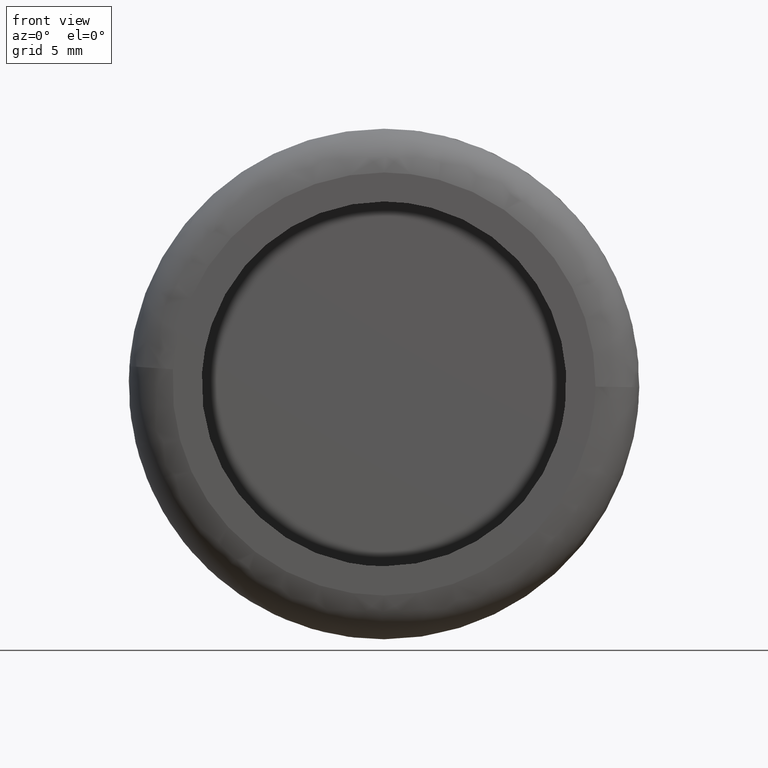
[diagram: clean part render]
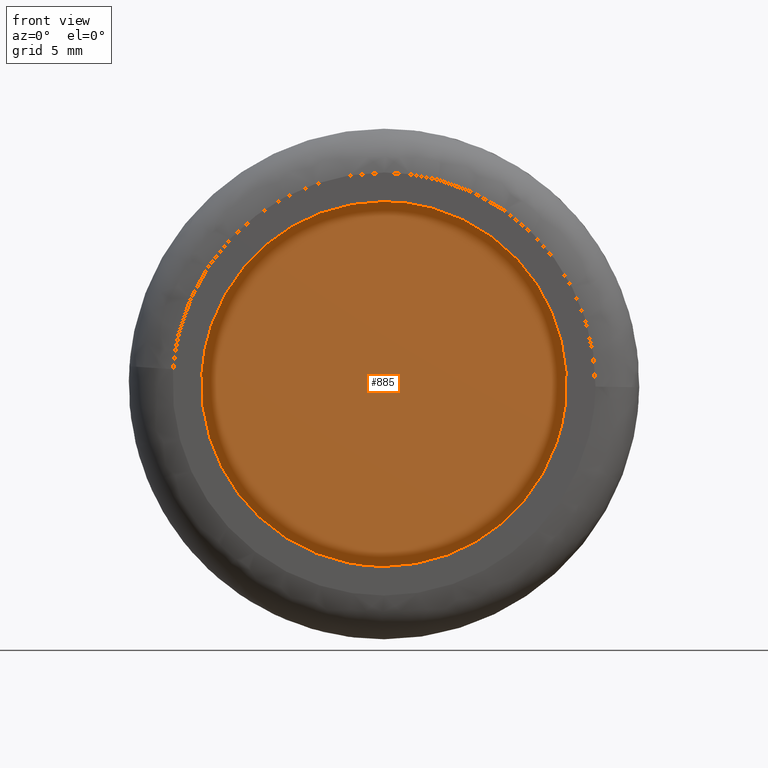
[diagram: same view with one face highlighted and labeled with its STEP entity id]
A machine part, front view. The second image highlights one B-rep face of the part: STEP entity #885.
In plain terms, the highlighted face is a freeform B-spline surface patch.
Its self-contained STEP definition (entity closure, byte-faithful):
#252=CARTESIAN_POINT('',(12.412619738504860,7.499999999999872,-1.475422389435752));
#253=VERTEX_POINT('',#252);
#254=CARTESIAN_POINT('',(0.0,7.499999999999900,12.500000000000000));
#255=VERTEX_POINT('',#254);
#256=CARTESIAN_POINT('',(12.412619738504862,7.499999999999872,-1.475422389435752));
#257=CARTESIAN_POINT('',(12.500000000000004,7.499999999999901,-0.740298694458164));
#258=CARTESIAN_POINT('',(12.500000000000000,7.499999999999900,-3.061516E-016));
#259=CARTESIAN_POINT('',(12.499999999999998,7.499999999999901,12.499999999999998));
#260=CARTESIAN_POINT('',(0.0,7.499999999999900,12.500000000000000));
#268=(BOUNDED_CURVE()B_SPLINE_CURVE(2,(#256,#257,#258,#259,#260),.UNSPECIFIED.,.F.,.U.)B_SPLINE_CURVE_WITH_KNOTS((3,2,3),(0.229562548996556,0.250000000000000,0.500000000000000),.UNSPECIFIED.)CURVE()GEOMETRIC_REPRESENTATION_ITEM()RATIONAL_B_SPLINE_CURVE((0.956026902133615,0.976056036765036,1.0,0.707106781186547,1.0))REPRESENTATION_ITEM(''));
#269=EDGE_CURVE('',#253,#255,#268,.T.);
#310=CARTESIAN_POINT('',(-12.476685756633151,7.499999999999887,0.763094050603009));
#311=VERTEX_POINT('',#310);
#317=CARTESIAN_POINT('',(0.0,7.499999999999900,12.500000000000000));
#318=CARTESIAN_POINT('',(-11.758837821925853,7.499999999999901,12.499999999999998));
#319=CARTESIAN_POINT('',(-12.476685756633152,7.499999999999887,0.763094050603009));
#327=(BOUNDED_CURVE()B_SPLINE_CURVE(2,(#317,#318,#319),.UNSPECIFIED.,.F.,.U.)B_SPLINE_CURVE_WITH_KNOTS((3,3),(0.500000000000000,0.739333137788376),.UNSPECIFIED.)CURVE()GEOMETRIC_REPRESENTATION_ITEM()RATIONAL_B_SPLINE_CURVE((1.0,0.719603787617756,0.976072417902860))REPRESENTATION_ITEM(''));
#328=EDGE_CURVE('',#255,#311,#327,.T.);
#351=CARTESIAN_POINT('',(0.0,7.499999999999900,-12.500000000000000));
#352=VERTEX_POINT('',#351);
#353=CARTESIAN_POINT('',(0.0,7.499999999999900,-12.500000000000000));
#354=CARTESIAN_POINT('',(11.102186567799974,7.499999999999901,-12.499999999999998));
#355=CARTESIAN_POINT('',(12.412619738504862,7.499999999999872,-1.475422389435752));
#363=(BOUNDED_CURVE()B_SPLINE_CURVE(2,(#353,#354,#355),.UNSPECIFIED.,.F.,.U.)B_SPLINE_CURVE_WITH_KNOTS((3,3),(0.0,0.229562548996556),.UNSPECIFIED.)CURVE()GEOMETRIC_REPRESENTATION_ITEM()RATIONAL_B_SPLINE_CURVE((1.0,0.731050744421512,0.956026902133615))REPRESENTATION_ITEM(''));
#364=EDGE_CURVE('',#352,#253,#363,.T.);
#366=CARTESIAN_POINT('',(-12.476685756633152,7.499999999999887,0.763094050603009));
#367=CARTESIAN_POINT('',(-12.500000000000000,7.499999999999900,0.381903176645719));
#368=CARTESIAN_POINT('',(-12.500000000000000,7.499999999999900,-3.061516E-016));
#369=CARTESIAN_POINT('',(-12.499999999999998,7.499999999999901,-12.499999999999998));
#370=CARTESIAN_POINT('',(0.0,7.499999999999900,-12.500000000000000));
#378=(BOUNDED_CURVE()B_SPLINE_CURVE(2,(#366,#367,#368,#369,#370),.UNSPECIFIED.,.F.,.U.)B_SPLINE_CURVE_WITH_KNOTS((3,2,3),(0.739333137788376,0.750000000000000,1.0),.UNSPECIFIED.)CURVE()GEOMETRIC_REPRESENTATION_ITEM()RATIONAL_B_SPLINE_CURVE((0.976072417902860,0.987502993568792,1.0,0.707106781186547,1.0))REPRESENTATION_ITEM(''));
#379=EDGE_CURVE('',#311,#352,#378,.T.);
#874=CARTESIAN_POINT('',(-13.748446416702111,7.499999999999900,-13.748749951545150));
#875=CARTESIAN_POINT('',(-13.748446416702111,7.499999999999900,13.748750622097401));
#876=CARTESIAN_POINT('',(13.748522636141621,7.499999999999900,-13.748749951545150));
#877=CARTESIAN_POINT('',(13.748522636141621,7.499999999999900,13.748750622097401));
#878=B_SPLINE_SURFACE_WITH_KNOTS('',1,1,((#874,#876),(#875,#877)),.UNSPECIFIED.,.F.,.F.,.U.,(2,2),(2,2),(0.0,27.497500573642551),(0.0,27.496969052843721),.UNSPECIFIED.);
#879=ORIENTED_EDGE('',*,*,#364,.T.);
#880=ORIENTED_EDGE('',*,*,#269,.T.);
#881=ORIENTED_EDGE('',*,*,#328,.T.);
#882=ORIENTED_EDGE('',*,*,#379,.T.);
#883=EDGE_LOOP('',(#879,#880,#881,#882));
#884=FACE_OUTER_BOUND('',#883,.T.);
#885=ADVANCED_FACE('',(#884),#878,.F.);